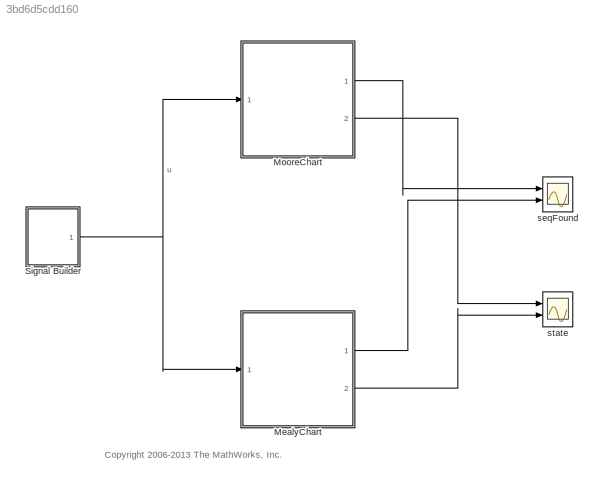
MODEL slx_3bd6d5cdd160
KIND model
CONFIG AbsTol = auto
CONFIG EnableMultiTasking = on
CONFIG FixedStep = auto
CONFIG MaxStep = auto
CONFIG MinStep = auto
CONFIG RelTol = 1e-3
CONFIG SampleTimeConstraint = Unconstrained
CONFIG Solver = FixedStepDiscrete
CONFIG SolverName = FixedStepDiscrete
CONFIG StartTime = 0.0
CONFIG StopTime = 10.0
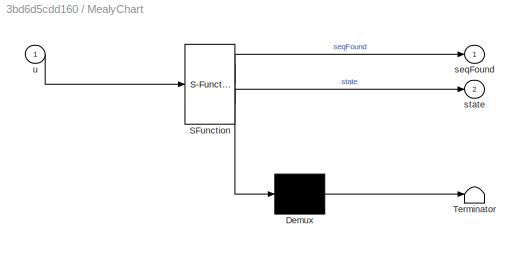
BLOCK [SubSystem] MealyChart
  ErrorFcn = Stateflow.Translate.translate
  PermitHierarchicalResolution = ExplicitOnly
  Ports = [1, 2]
  RequestExecContextInheritance = off
  SFBlockType = Chart
  TreatAsAtomicUnit = on
  Variant = off
BLOCK [Demux] MealyChart/ Demux 
  Outputs = 1
  Ports = [1, 1]
BLOCK [S-Function] MealyChart/ SFunction 
  EnableBusSupport = off
  FunctionName = sf_sfun
  PortCounts = [1 3]
  Ports = [1, 3]
  SFcnIsStateOwnerBlock = off
  SFunctionDeploymentMode = off
  Tag = Stateflow S-Function sf_seqrec 2
BLOCK [Terminator] MealyChart/ Terminator 
BLOCK [Outport] MealyChart/seqFound
  IconDisplay = Port number
BLOCK [Outport] MealyChart/state
  IconDisplay = Port number
  Port = 2
BLOCK [Inport] MealyChart/u
  IconDisplay = Port number
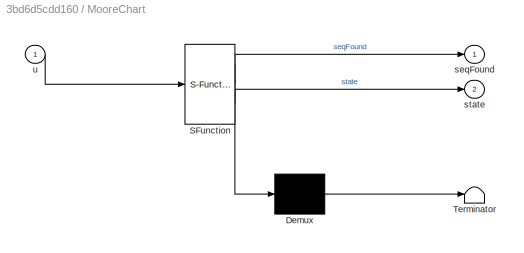
BLOCK [SubSystem] MooreChart
  ErrorFcn = Stateflow.Translate.translate
  PermitHierarchicalResolution = ExplicitOnly
  Ports = [1, 2]
  RequestExecContextInheritance = off
  SFBlockType = Chart
  TreatAsAtomicUnit = on
  Variant = off
BLOCK [Demux] MooreChart/ Demux 
  Outputs = 1
  Ports = [1, 1]
BLOCK [S-Function] MooreChart/ SFunction 
  EnableBusSupport = off
  FunctionName = sf_sfun
  PortCounts = [1 3]
  Ports = [1, 3]
  SFcnIsStateOwnerBlock = off
  SFunctionDeploymentMode = off
  Tag = Stateflow S-Function sf_seqrec 1
BLOCK [Terminator] MooreChart/ Terminator 
BLOCK [Outport] MooreChart/seqFound
  IconDisplay = Port number
BLOCK [Outport] MooreChart/state
  IconDisplay = Port number
  Port = 2
BLOCK [Inport] MooreChart/u
  IconDisplay = Port number
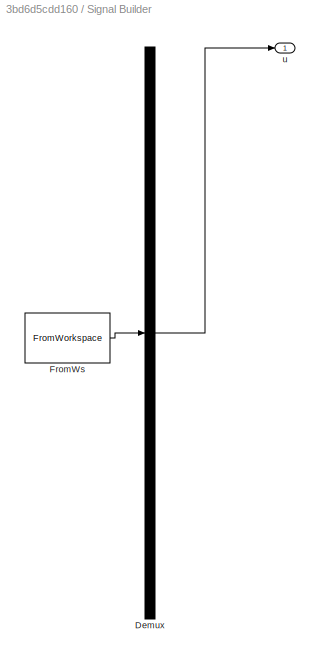
BLOCK [SubSystem] Signal Builder
  ClipboardFcn = sigbuilder_block('clipboard');
  CloseFcn = sigbuilder_block('close');
  ContinueFcn = sigbuilder_block('continue')
  CopyFcn = sigbuilder_block('copy');
  DeleteFcn = sigbuilder_block('delete');
  LoadFcn = sigbuilder_block('load');
  MaskHideContents = on
  ModelCloseFcn = sigbuilder_block('modelClose');
  NameChangeFcn = sigbuilder_block('namechange');
  OpenFcn = sigbuilder_block('open',[127.5 390 550.5 399.75 ]);
  PauseFcn = sigbuilder_block('pause')
  Ports = [0, 1]
  PreSaveFcn = sigbuilder_block('preSave');
  RequestExecContextInheritance = off
  StartFcn = sigbuilder_block('start');
  StopFcn = sigbuilder_block('stop');
  Tag = STV Subsys
  Variant = off
BLOCK [Demux] Signal Builder/Demux
  Outputs = 1
  Ports = [1, 1]
  Tag = STV Demux
BLOCK [FromWorkspace] Signal Builder/FromWs
  SampleTime = 0
  Tag = STV FromWs
  VariableName = tuvar
  ZeroCross = on
BLOCK [Outport] Signal Builder/u
  IconDisplay = Port number
  Tag = STV Outport
BLOCK [Scope] seqFound
  NumInputPorts = 2
  Ports = [2]
  ScopeSpecificationString = Simulink.scopes.TimeScopeBlockCfg('CurrentConfiguration', extmgr.ConfigurationSet(extmgr.Configuration('Core','General UI',true,'MessageLogAutoOpenMode','for warn/fail messages','ShowCloseAll',true,'ShowBringAllForward',true),extmgr.Configuration('Core','Source UI',true,'PlaybackToolbar',true),extmgr.Configuration('Sources','WiredSimulink',true,'PointsPerSignal',50000,'DataLoggingLimitDataPoints',...<+2583ch>
BLOCK [Scope] state
  NumInputPorts = 2
  Ports = [2]
  ScopeSpecificationString = Simulink.scopes.TimeScopeBlockCfg('CurrentConfiguration', extmgr.ConfigurationSet(extmgr.Configuration('Core','General UI',true,'MessageLogAutoOpenMode','for warn/fail messages','ShowCloseAll',true,'ShowBringAllForward',true),extmgr.Configuration('Core','Source UI',true,'PlaybackToolbar',true),extmgr.Configuration('Sources','WiredSimulink',true,'PointsPerSignal',50000,'DataLoggingVariableName','Sc...<+2622ch>
ANNOTATION (root): <copyright redacted>
LINE MealyChart:1 -> seqFound:2
LINE MealyChart:2 -> state:2
LINE MooreChart:1 -> seqFound:1
LINE MooreChart:2 -> state:1
LINE Signal Builder/Demux:1 -> Signal Builder/u:1
LINE Signal Builder/FromWs:1 -> Signal Builder/Demux:1
NET Signal Builder:1 -> MealyChart:1, MooreChart:1
note: NET lines group one-source signal fan-out (src -> all destinations, sorted); 1:1 wires keep LINE
CHART MooreChart states=5 transitions=12
  STATE_LABEL 's1213\nstate=4;\nseqFound=true;'
  STATE_LABEL 's121\nstate=3;'
  STATE_LABEL 's12\nstate=2;'
  STATE_LABEL 's1\nstate=1;\nseqFound=false;'
  STATE_LABEL 's0\nstate=0;\nseqFound=false;'
CHART MealyChart states=5 transitions=12
  STATE_LABEL 's121'
  STATE_LABEL 's1213'
  STATE_LABEL 's0'
  STATE_LABEL 's1'
  STATE_LABEL 's12'
